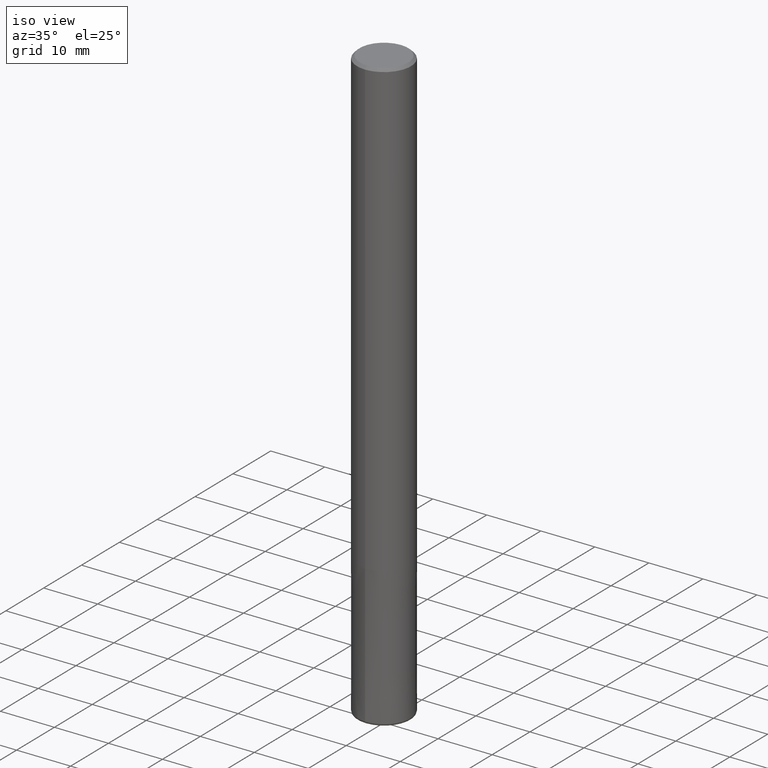
[diagram: clean part render]
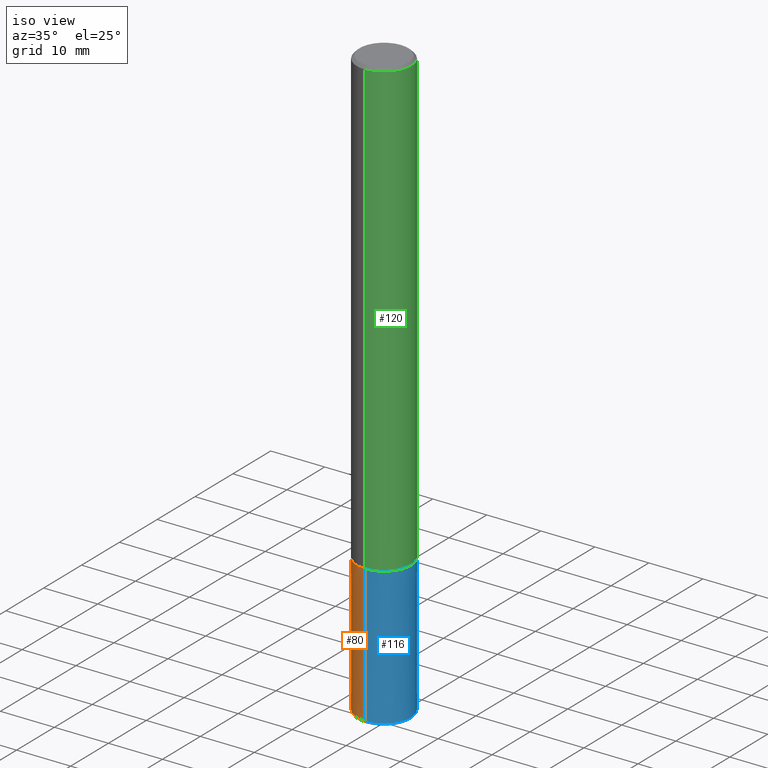
[diagram: same view with three faces highlighted in distinct colors, each labeled with its STEP entity id]
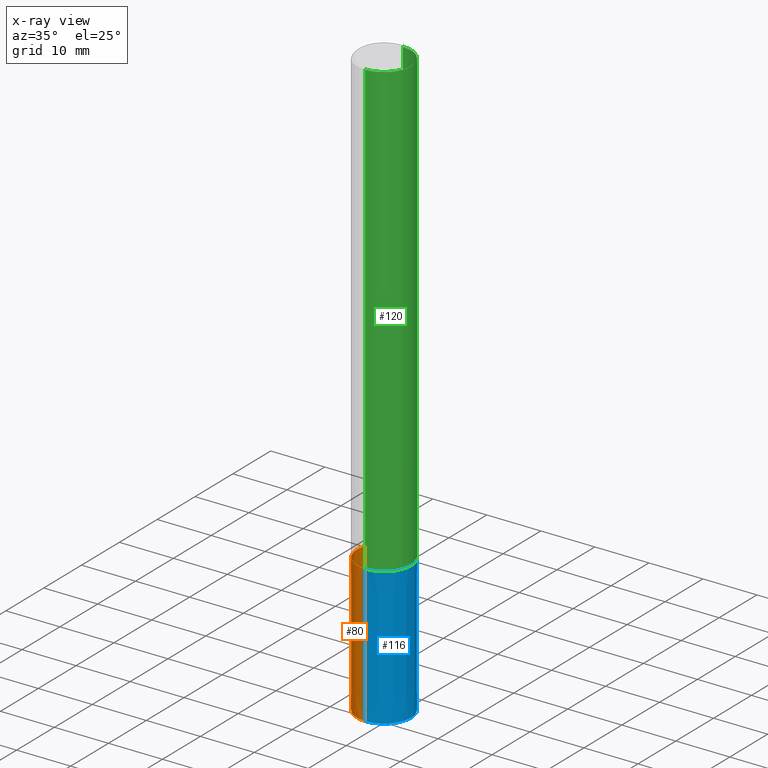
[diagram: x-ray of the same camera — body ghosted, the three highlighted faces saturated]
A machine part, iso view with three faces highlighted in distinct colors.
The next image is the same camera in x-ray (body ghosted, the three faces saturated) — at least one of them is partly hidden behind the body in this view.
Their STEP definitions:

[orange] entity #80 — the highlighted conical surface has half-angle 0 deg.
#70=VERTEX_POINT('',#175);
#80=ADVANCED_FACE('',(#186),#187,.T.);
#106=EDGE_CURVE('',#152,#110,#216,.T.);
#110=VERTEX_POINT('',#221);
#112=VERTEX_POINT('',#223);
#114=EDGE_CURVE('',#112,#110,#225,.T.);
#128=EDGE_CURVE('',#112,#70,#242,.T.);
#134=EDGE_CURVE('',#70,#152,#248,.T.);
#152=VERTEX_POINT('',#268);
#175=CARTESIAN_POINT('',(6.1229093084765E-016,-4.9999,-84.0));
#186=FACE_OUTER_BOUND('',#295,.T.);
#187=CONICAL_SURFACE('',#296,4.99995,3.92156862742174E-006);
#216=LINE('',#331,#332);
#221=CARTESIAN_POINT('',(0.0,5.0,-109.5));
#223=CARTESIAN_POINT('',(6.12303176911189E-016,-5.0,-109.5));
#225=CIRCLE('',#342,5.0);
#242=LINE('',#363,#364);
#248=CIRCLE('',#372,4.9999);
#268=CARTESIAN_POINT('',(0.0,4.9999,-84.0));
#295=EDGE_LOOP('',(#424,#425,#426,#427));
#296=AXIS2_PLACEMENT_3D('',#428,#429,#430);
#331=CARTESIAN_POINT('',(-6.12297053879419E-016,4.99995,-96.75));
#332=VECTOR('',#454,1.0);
#342=AXIS2_PLACEMENT_3D('',#463,#464,#465);
#363=CARTESIAN_POINT('',(6.12297053879419E-016,-4.99995,-96.75));
#364=VECTOR('',#499,1.0);
#372=AXIS2_PLACEMENT_3D('',#503,#504,#505);
#424=ORIENTED_EDGE('',*,*,#106,.T.);
#425=ORIENTED_EDGE('',*,*,#114,.F.);
#426=ORIENTED_EDGE('',*,*,#128,.T.);
#427=ORIENTED_EDGE('',*,*,#134,.T.);
#428=CARTESIAN_POINT('',(0.0,0.0,-96.75));
#429=DIRECTION('',(0.0,-0.0,-1.0));
#430=DIRECTION('',(0.0,1.0,0.0));
#454=DIRECTION('',(-4.80237785807885E-022,3.92156862741169E-006,-0.999999999992311));
#463=CARTESIAN_POINT('',(0.0,0.0,-109.5));
#464=DIRECTION('',(0.0,0.0,-1.0));
#465=DIRECTION('',(0.0,1.0,0.0));
#499=DIRECTION('',(-4.80237785807885E-022,3.92156862741169E-006,0.999999999992311));
#503=CARTESIAN_POINT('',(0.0,0.0,-84.0));
#504=DIRECTION('',(0.0,0.0,-1.0));
#505=DIRECTION('',(0.0,1.0,0.0));

[blue] entity #116 — the highlighted conical surface has half-angle 0 deg.
#70=VERTEX_POINT('',#175);
#106=EDGE_CURVE('',#152,#110,#216,.T.);
#110=VERTEX_POINT('',#221);
#112=VERTEX_POINT('',#223);
#116=ADVANCED_FACE('',(#227),#228,.T.);
#122=EDGE_CURVE('',#152,#70,#235,.T.);
#128=EDGE_CURVE('',#112,#70,#242,.T.);
#130=EDGE_CURVE('',#110,#112,#244,.T.);
#152=VERTEX_POINT('',#268);
#175=CARTESIAN_POINT('',(6.1229093084765E-016,-4.9999,-84.0));
#216=LINE('',#331,#332);
#221=CARTESIAN_POINT('',(0.0,5.0,-109.5));
#223=CARTESIAN_POINT('',(6.12303176911189E-016,-5.0,-109.5));
#227=FACE_OUTER_BOUND('',#344,.T.);
#228=CONICAL_SURFACE('',#345,4.99995,3.92156862742174E-006);
#235=CIRCLE('',#354,4.9999);
#242=LINE('',#363,#364);
#244=CIRCLE('',#367,5.0);
#268=CARTESIAN_POINT('',(0.0,4.9999,-84.0));
#331=CARTESIAN_POINT('',(-6.12297053879419E-016,4.99995,-96.75));
#332=VECTOR('',#454,1.0);
#344=EDGE_LOOP('',(#467,#468,#469,#470));
#345=AXIS2_PLACEMENT_3D('',#471,#472,#473);
#354=AXIS2_PLACEMENT_3D('',#485,#486,#487);
#363=CARTESIAN_POINT('',(6.12297053879419E-016,-4.99995,-96.75));
#364=VECTOR('',#499,1.0);
#367=AXIS2_PLACEMENT_3D('',#500,#501,#502);
#454=DIRECTION('',(-4.80237785807885E-022,3.92156862741169E-006,-0.999999999992311));
#467=ORIENTED_EDGE('',*,*,#106,.F.);
#468=ORIENTED_EDGE('',*,*,#122,.T.);
#469=ORIENTED_EDGE('',*,*,#128,.F.);
#470=ORIENTED_EDGE('',*,*,#130,.F.);
#471=CARTESIAN_POINT('',(0.0,0.0,-96.75));
#472=DIRECTION('',(0.0,-0.0,-1.0));
#473=DIRECTION('',(0.0,1.0,0.0));
#485=CARTESIAN_POINT('',(0.0,0.0,-84.0));
#486=DIRECTION('',(0.0,0.0,-1.0));
#487=DIRECTION('',(0.0,1.0,0.0));
#499=DIRECTION('',(-4.80237785807885E-022,3.92156862741169E-006,0.999999999992311));
#500=CARTESIAN_POINT('',(0.0,0.0,-109.5));
#501=DIRECTION('',(0.0,0.0,-1.0));
#502=DIRECTION('',(0.0,1.0,0.0));

[green] entity #120 — the highlighted cylindrical surface (edge-blend (fillet) strip) has radius 5 mm, axis along (-0, -0, 1).
#72=VERTEX_POINT('',#177);
#74=EDGE_CURVE('',#90,#72,#179,.T.);
#90=VERTEX_POINT('',#199);
#98=EDGE_CURVE('',#132,#90,#208,.T.);
#102=VERTEX_POINT('',#212);
#120=ADVANCED_FACE('',(#232),#233,.T.);
#132=VERTEX_POINT('',#246);
#148=EDGE_CURVE('',#102,#72,#264,.T.);
#154=EDGE_CURVE('',#102,#132,#270,.T.);
#177=CARTESIAN_POINT('',(6.12303176911189E-016,-5.0,-0.5));
#179=LINE('',#286,#287);
#199=CARTESIAN_POINT('',(6.12303176911189E-016,-5.0,-84.0));
#208=CIRCLE('',#321,5.0);
#212=CARTESIAN_POINT('',(0.0,5.0,-0.5));
#232=FACE_OUTER_BOUND('',#350,.T.);
#233=CYLINDRICAL_SURFACE('',#351,5.0);
#246=CARTESIAN_POINT('',(0.0,5.0,-84.0));
#264=CIRCLE('',#393,5.0);
#270=LINE('',#400,#401);
#286=CARTESIAN_POINT('',(6.12303176911189E-016,-5.0,-42.25));
#287=VECTOR('',#411,1.0);
#321=AXIS2_PLACEMENT_3D('',#449,#450,#451);
#350=EDGE_LOOP('',(#478,#479,#480,#481));
#351=AXIS2_PLACEMENT_3D('',#482,#483,#484);
#393=AXIS2_PLACEMENT_3D('',#532,#533,#534);
#400=CARTESIAN_POINT('',(-6.12303176911189E-016,5.0,-42.25));
#401=VECTOR('',#535,1.0);
#411=DIRECTION('',(-0.0,-0.0,1.0));
#449=CARTESIAN_POINT('',(0.0,0.0,-84.0));
#450=DIRECTION('',(0.0,0.0,-1.0));
#451=DIRECTION('',(0.0,1.0,0.0));
#478=ORIENTED_EDGE('',*,*,#154,.F.);
#479=ORIENTED_EDGE('',*,*,#148,.T.);
#480=ORIENTED_EDGE('',*,*,#74,.F.);
#481=ORIENTED_EDGE('',*,*,#98,.F.);
#482=CARTESIAN_POINT('',(0.0,0.0,-42.25));
#483=DIRECTION('',(-0.0,-0.0,1.0));
#484=DIRECTION('',(0.0,1.0,0.0));
#532=CARTESIAN_POINT('',(0.0,0.0,-0.5));
#533=DIRECTION('',(0.0,0.0,-1.0));
#534=DIRECTION('',(0.0,1.0,0.0));
#535=DIRECTION('',(0.0,0.0,-1.0));